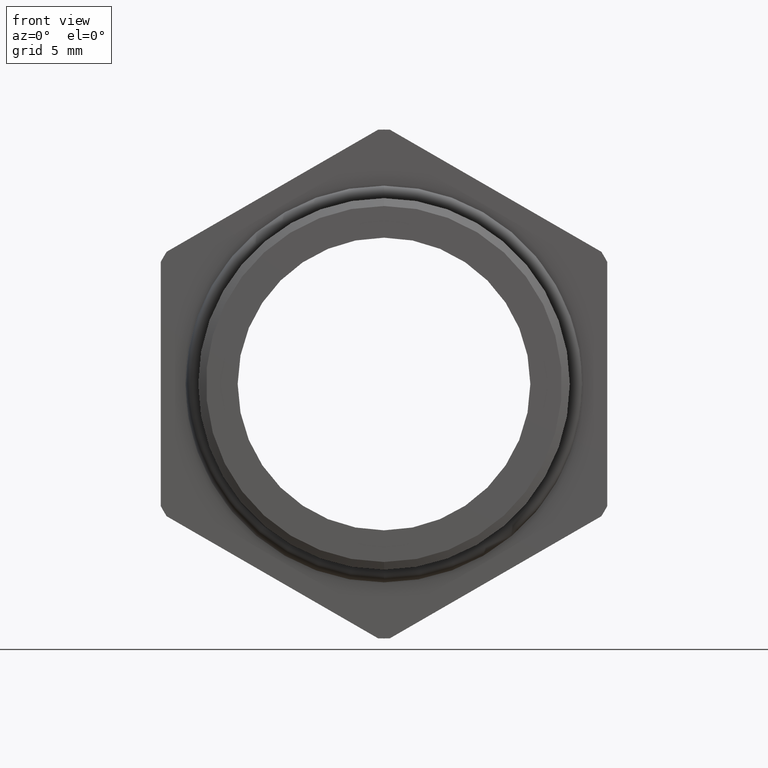
[diagram: clean part render]
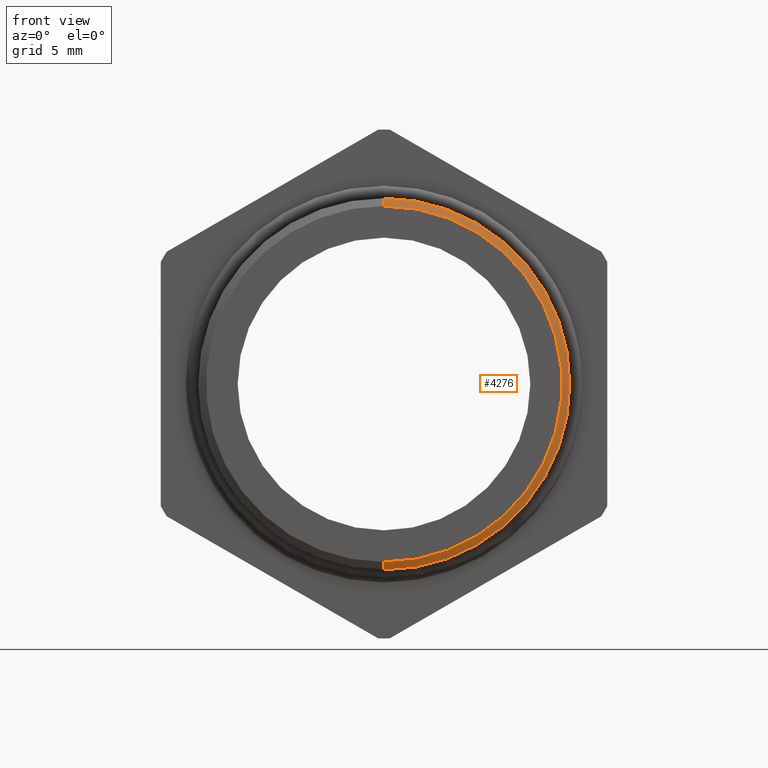
[diagram: same view with one face highlighted and labeled with its STEP entity id]
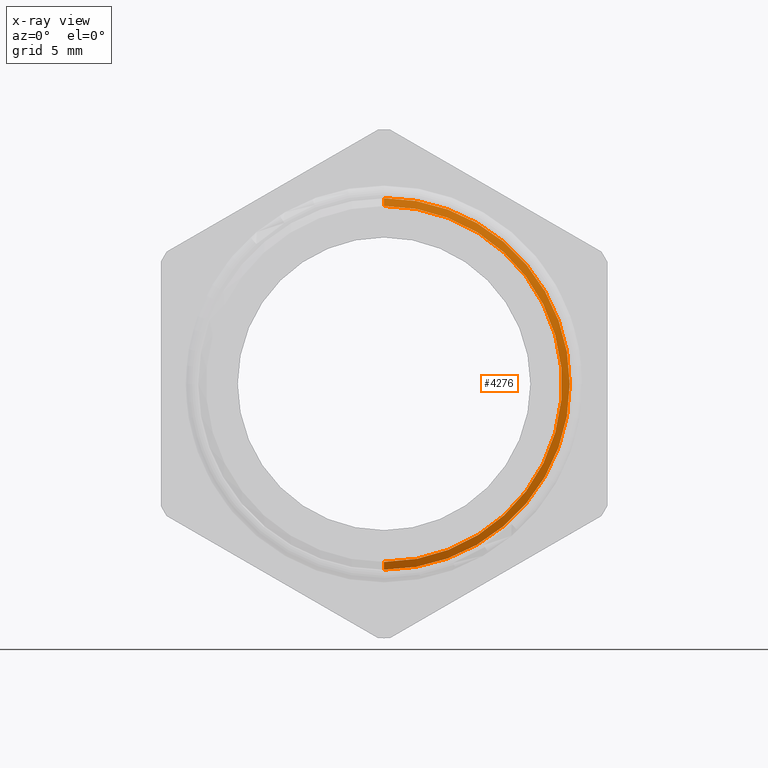
[diagram: x-ray of the same camera — body ghosted, the highlighted face saturated]
A machine part, front view. The second image highlights one B-rep face of the part: STEP entity #4276.
The next image is the same camera in x-ray: the body ghosted, the highlighted face saturated — about 0% of this face is hidden behind the body in this view.
In plain terms, the highlighted conical surface has half-angle 60 deg.
Its self-contained STEP definition (entity closure, byte-faithful):
#459 = CARTESIAN_POINT ( 'NONE',  ( 0.0000000000000000000, -0.07484510941705201100, -0.3287738815610546400 ) ) ;
#512 = DIRECTION ( 'NONE',  ( 0.0000000000000000000, 0.5000000000000008900, 0.8660254037844380400 ) ) ;
#513 = VECTOR ( 'NONE', #512, 39.37007874015748100 ) ;
#514 = CARTESIAN_POINT ( 'NONE',  ( 0.0000000000000000000, -0.07484510941705201100, 0.3287738815610546400 ) ) ;
#515 = LINE ( 'NONE', #514, #513 ) ;
#516 = CARTESIAN_POINT ( 'NONE',  ( 4.026318816969966200E-017, -0.07484510941705201100, 0.3287738815610546400 ) ) ;
#517 = DIRECTION ( 'NONE',  ( 0.0000000000000000000, 0.0000000000000000000, 1.000000000000000000 ) ) ;
#518 = DIRECTION ( 'NONE',  ( -0.0000000000000000000, 1.000000000000000000, -0.0000000000000000000 ) ) ;
#519 = CARTESIAN_POINT ( 'NONE',  ( 0.0000000000000000000, -0.07484510941705201100, 0.0000000000000000000 ) ) ;
#520 = AXIS2_PLACEMENT_3D ( 'NONE', #519, #518, #517 ) ;
#521 = CIRCLE ( 'NONE', #520, 0.3287738815610546400 ) ;
#538 = DIRECTION ( 'NONE',  ( 0.0000000000000000000, 0.0000000000000000000, 1.000000000000000000 ) ) ;
#539 = DIRECTION ( 'NONE',  ( -0.0000000000000000000, 1.000000000000000000, -0.0000000000000000000 ) ) ;
#540 = CARTESIAN_POINT ( 'NONE',  ( 0.0000000000000000000, -0.07484510941705201100, 0.0000000000000000000 ) ) ;
#541 = AXIS2_PLACEMENT_3D ( 'NONE', #540, #539, #538 ) ;
#542 = CONICAL_SURFACE ( 'NONE', #541, 0.3287738815610546400, 1.047197551196596700 ) ;
#543 = FACE_OUTER_BOUND ( 'NONE', #4330, .T. ) ;
#615 = LINE ( 'NONE', #676, #675 ) ;
#616 = CARTESIAN_POINT ( 'NONE',  ( 3.857637417314162700E-017, -0.08279746364411295900, -0.3150000000000000000 ) ) ;
#617 = CARTESIAN_POINT ( 'NONE',  ( 0.0000000000000000000, -0.08279746364411295900, 0.3150000000000000000 ) ) ;
#618 = DIRECTION ( 'NONE',  ( 0.0000000000000000000, 0.0000000000000000000, 1.000000000000000000 ) ) ;
#619 = DIRECTION ( 'NONE',  ( -0.0000000000000000000, 1.000000000000000000, -0.0000000000000000000 ) ) ;
#620 = CARTESIAN_POINT ( 'NONE',  ( 0.0000000000000000000, -0.08279746364411295900, 0.0000000000000000000 ) ) ;
#621 = AXIS2_PLACEMENT_3D ( 'NONE', #620, #619, #618 ) ;
#622 = CIRCLE ( 'NONE', #621, 0.3150000000000000000 ) ;
#674 = DIRECTION ( 'NONE',  ( 1.060575238724906300E-016, 0.5000000000000008900, -0.8660254037844380400 ) ) ;
#675 = VECTOR ( 'NONE', #674, 39.37007874015748100 ) ;
#676 = CARTESIAN_POINT ( 'NONE',  ( 4.026318816969965600E-017, -0.07484510941705201100, -0.3287738815610546400 ) ) ;
#4253 = VERTEX_POINT ( 'NONE', #459 ) ;
#4254 = ORIENTED_EDGE ( 'NONE', *, *, #4255, .F. ) ;
#4255 = EDGE_CURVE ( 'NONE', #4256, #4253, #521, .T. ) ;
#4256 = VERTEX_POINT ( 'NONE', #516 ) ;
#4257 = ORIENTED_EDGE ( 'NONE', *, *, #4258, .F. ) ;
#4258 = EDGE_CURVE ( 'NONE', #4333, #4256, #515, .T. ) ;
#4276 = ADVANCED_FACE ( 'NONE', ( #543 ), #542, .T. ) ;
#4330 = EDGE_LOOP ( 'NONE', ( #4331, #4335, #4254, #4257 ) ) ;
#4331 = ORIENTED_EDGE ( 'NONE', *, *, #4332, .T. ) ;
#4332 = EDGE_CURVE ( 'NONE', #4333, #4334, #622, .T. ) ;
#4333 = VERTEX_POINT ( 'NONE', #617 ) ;
#4334 = VERTEX_POINT ( 'NONE', #616 ) ;
#4335 = ORIENTED_EDGE ( 'NONE', *, *, #4336, .T. ) ;
#4336 = EDGE_CURVE ( 'NONE', #4334, #4253, #615, .T. ) ;